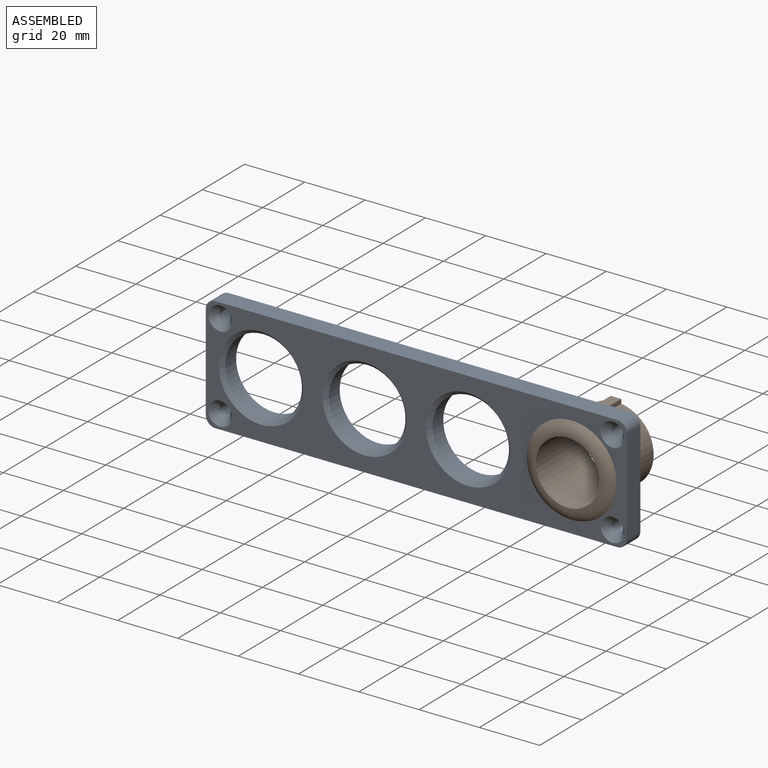
[diagram: assembled view]
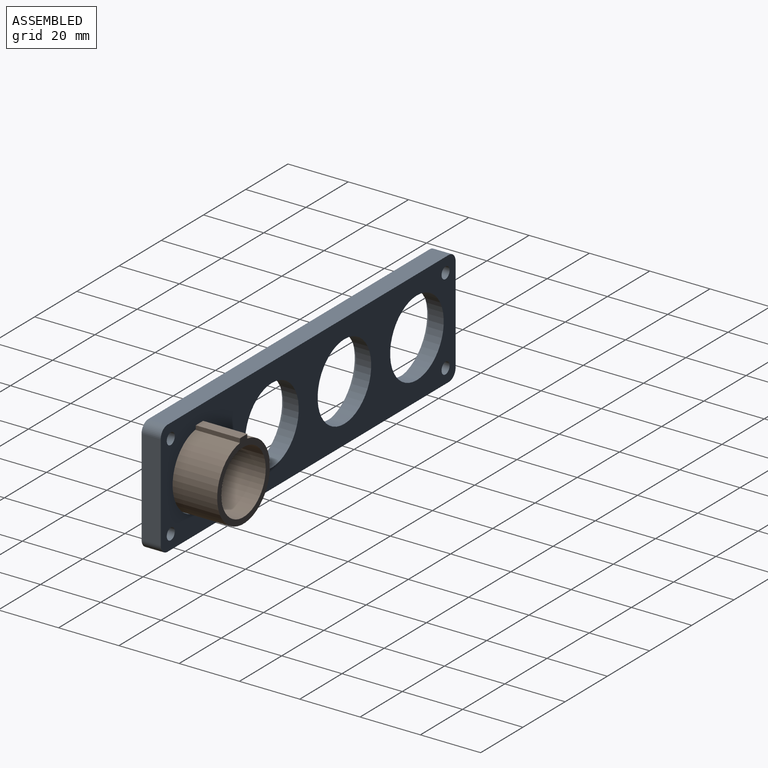
[diagram: assembled view, second angle]
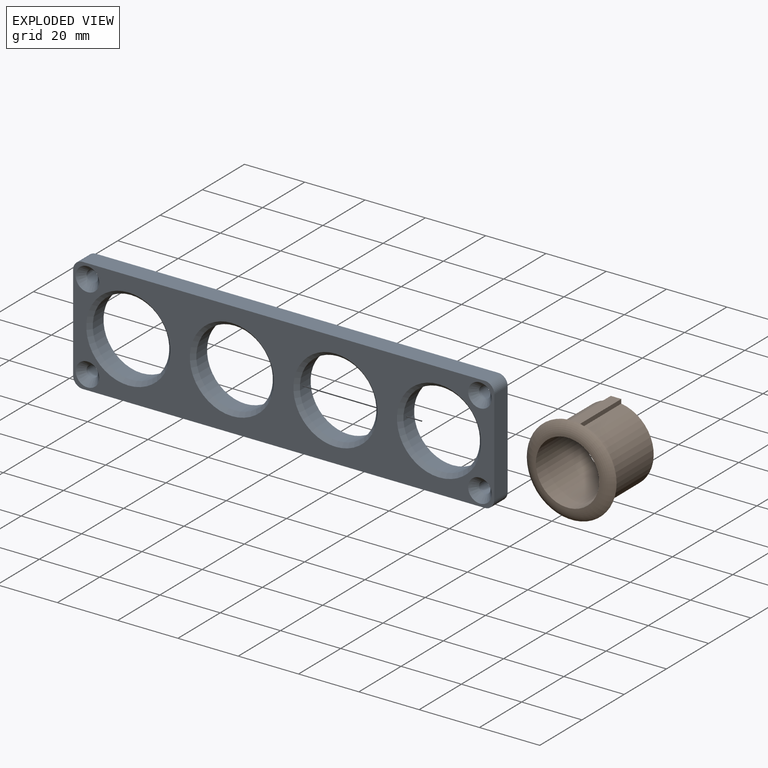
[diagram: exploded view]
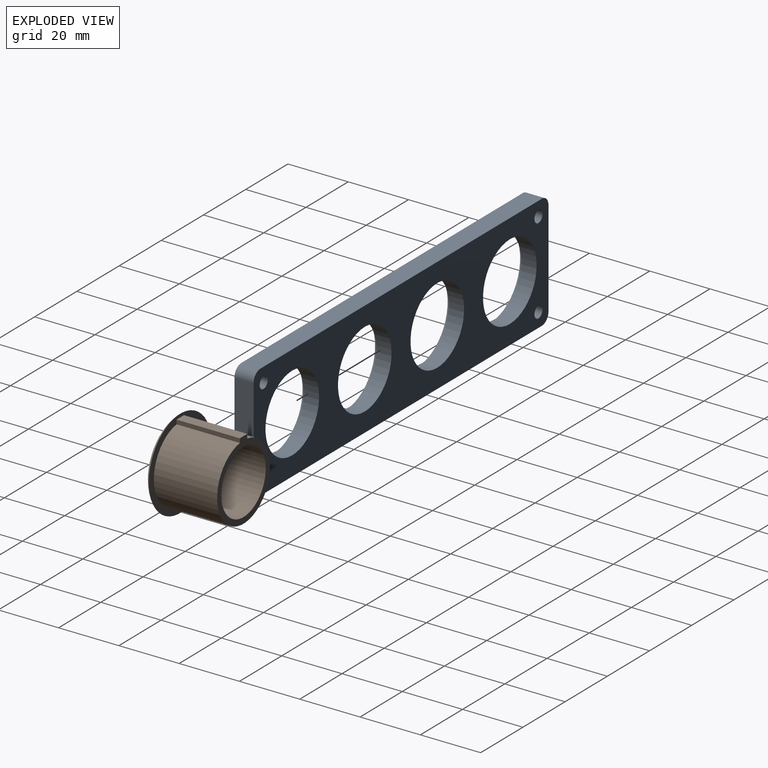
[diagram: exploded view, second angle]
ASSEMBLY  parts=2 mates=2
PART A: 26 faces, bbox 139.7x6.4x38.1 mm
  f0: plane 133.35x6.35mm, normal (0,0,1), area 846.8mm2, adj f4,f5,f6,f9
  f1: plane 31.75x6.35mm, normal (-1,0,0), area 201.6mm2, adj f4,f5,f6,f7
  f2: plane 133.35x6.35mm, normal (0,0,-1), area 846.8mm2, adj f4,f5,f7,f8
  f3: plane 31.75x6.35mm, normal (1,0,0), area 201.6mm2, adj f4,f5,f8,f9
  f4: plane 139.7x38.1mm, normal (0,-1,0), area 2670.4mm2, adj f0,f1,f2,f3,f6,f7,f8,f9
  f5: plane 139.7x38.1mm, normal (0,1,0), area 3241.8mm2, adj f0,f1,f2,f3,f6,f7,f8,f9
  f6: cylinder r=3.17mm len=6.35mm, axis (0,-1,0), area 31.7mm2, adj f0,f1,f4,f5
  f7: cylinder r=3.17mm len=6.35mm, axis (0,1,0), area 31.7mm2, adj f1,f2,f4,f5
  f8: cylinder r=3.17mm len=6.35mm, axis (0,-1,0), area 31.7mm2, adj f2,f3,f4,f5
  f9: cylinder r=3.17mm len=6.35mm, axis (0,1,0), area 31.7mm2, adj f0,f3,f4,f5
  f10: cylinder r=12.7mm len=25.4mm, axis (0,-1,0), area 405.4mm2, adj f5,f14
  f11: cylinder r=12.7mm len=25.4mm, axis (0,-1,0), area 405.4mm2, adj f5,f15
  f12: cylinder r=12.7mm len=25.4mm, axis (0,-1,0), area 405.4mm2, adj f5,f16
  f13: cylinder r=12.7mm len=25.4mm, axis (0,-1,0), area 405.4mm2, adj f5,f17
  f14: cone r=12.7mm half-angle=45deg, axis (0,-1,0), area 150.5mm2, adj f4,f10
  f15: cone r=12.7mm half-angle=45deg, axis (0,-1,0), area 150.5mm2, adj f4,f11
  f16: cone r=12.7mm half-angle=45deg, axis (0,-1,0), area 150.5mm2, adj f4,f12
  f17: cone r=12.7mm half-angle=45deg, axis (0,-1,0), area 150.5mm2, adj f4,f13
  f18: cylinder r=1.9mm len=4.05mm, axis (0,-1,0), area 48.3mm2, adj f5,f19
  f19: cone r=1.9mm half-angle=41deg, axis (0,-1,0), area 55.5mm2, adj f4,f18
  f20: cylinder r=1.9mm len=4.05mm, axis (0,-1,0), area 48.3mm2, adj f5,f21
  f21: cone r=1.9mm half-angle=41deg, axis (0,-1,0), area 55.5mm2, adj f4,f20
  f22: cylinder r=1.9mm len=4.05mm, axis (0,-1,0), area 48.3mm2, adj f5,f23
  f23: cone r=1.9mm half-angle=41deg, axis (0,-1,0), area 55.5mm2, adj f4,f22
  f24: cylinder r=1.9mm len=4.05mm, axis (0,-1,0), area 48.3mm2, adj f5,f25
  f25: cone r=1.9mm half-angle=41deg, axis (0,-1,0), area 55.5mm2, adj f4,f24
PART B: 9 faces, bbox 34.4x23x34.4 mm
  f0: cylinder r=12.5mm len=25mm, axis (0,1,0), area 1575.6mm2, adj f1,f3,f5,f7
  f1: plane 21x1.4mm, normal (1,0,0), area 29.4mm2, adj f0,f2,f5,f7
  f2: plane 21x3.5mm, normal (0,0,1), area 73.5mm2, adj f1,f3,f5,f7
  f3: plane 21x1.4mm, normal (-1,0,0), area 29.4mm2, adj f0,f2,f5,f7
  f4: cylinder r=10.5mm len=23mm, axis (0,1,0), area 1517.4mm2, adj f5,f6
  f5: plane 26.28x25mm, normal (0,-1,0), area 149.1mm2, adj f0,f1,f2,f3,f4
  f6: plane 21.79x21.79mm, normal (0,1,0), area 26.4mm2, adj f4,f8
  f7: plane 29.79x29.79mm, normal (0,-1,0), area 201.3mm2, adj f0,f1,f2,f3,f8
  f8: torus R=10.89mm, axis (0,1,0), area 380.1mm2, adj f6,f7
PLACE A t=(-109.61,-21.06,-35.75)mm
PLACE B rot(axis=(0,0,1),180deg) t=(11.77,-29.41,-16.7)mm
MATE planar B.f7 <-> A.f4  axis (0,1,0) through (11.77,-27.41,-17)mm
MATE cylindrical A.f10 <-> B.f0  axis (0,-1,0) through (11.77,-23.6,-16.7)mm
